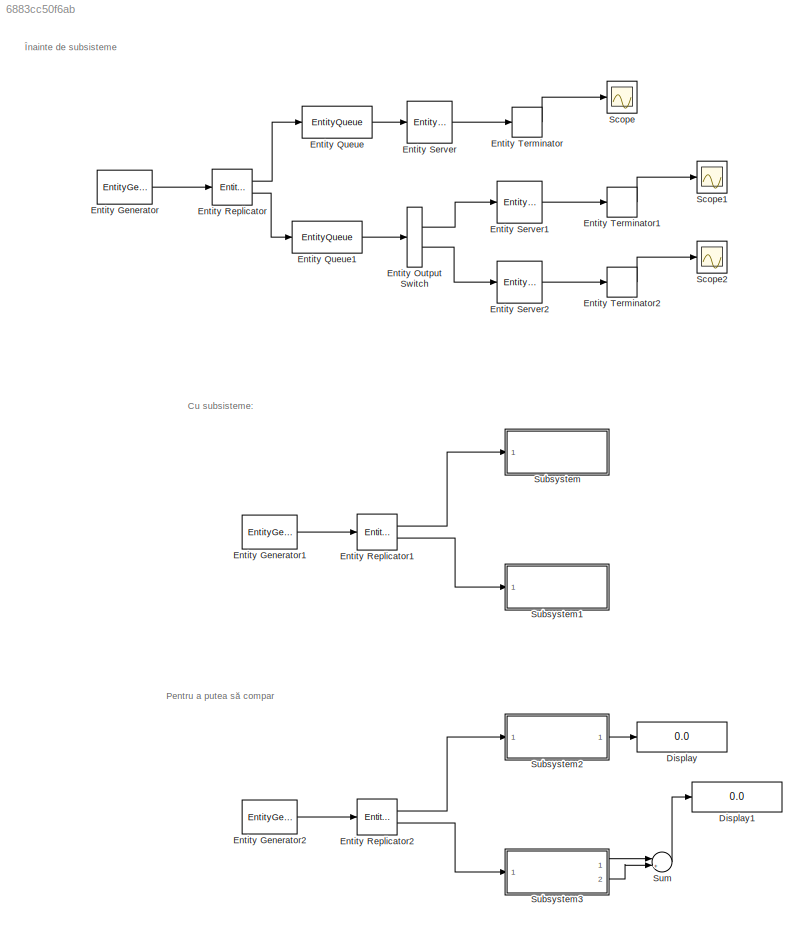
MODEL slx_6883cc50f6ab
KIND model
CONFIG AbsTol = auto
CONFIG FixedStep = auto
CONFIG MaxStep = auto
CONFIG MinStep = auto
CONFIG RelTol = 1e-3
CONFIG SampleTimeConstraint = Unconstrained
CONFIG Solver = VariableStepDiscrete
CONFIG SolverMode = Auto
CONFIG SolverName = VariableStepDiscrete
CONFIG StartTime = 0.0
CONFIG StopTime = 100
BLOCK [Display] Display
  Decimation = 1
  Ports = [1]
BLOCK [Display] Display1
  Decimation = 1
  Ports = [1]
BLOCK [EntityGenerator] Entity Generator
  AttributeInitialValue = exprnd(1)
  AttributeName = ServiceTime
  EntityType = Structured
  EntityTypeName = Entity
  IntergenerationTimeAction = dt = exprnd(0.5);
  OutputPortMap = o3
  OutputPortMessageModes = m
  Ports = [0, 1]
  TimeSource = MATLAB action
BLOCK [EntityGenerator] Entity Generator1
  AttributeInitialValue = exprnd(1)
  AttributeName = ServiceTime
  EntityType = Structured
  EntityTypeName = Entity
  IntergenerationTimeAction = dt = exprnd(0.5);
  OutputPortMap = o3
  OutputPortMessageModes = m
  Ports = [0, 1]
  TimeSource = MATLAB action
BLOCK [EntityGenerator] Entity Generator2
  AttributeInitialValue = exprnd(1)
  AttributeName = ServiceTime
  EntityType = Structured
  EntityTypeName = Entity
  IntergenerationTimeAction = dt = exprnd(0.5);
  OutputPortMap = o3
  OutputPortMessageModes = m
  Ports = [0, 1]
  TimeSource = MATLAB action
BLOCK [EntityOutputSwitch] Entity Output Switch
  InputPortMap = u1
  InputPortMessageModes = m
  OutputPortMap = o0,o1
  OutputPortMessageModes = m,m
  Ports = [1, 2]
  SwitchAttributeName = Attribute1
BLOCK [EntityQueue] Entity Queue
  InputPortMap = u0
  InputPortMessageModes = m
  OutputPortMap = o5
  OutputPortMessageModes = m
  Ports = [1, 1]
BLOCK [EntityQueue] Entity Queue1
  InputPortMap = u0
  InputPortMessageModes = m
  OutputPortMap = o5
  OutputPortMessageModes = m
  Ports = [1, 1]
BLOCK [EntityReplicator] Entity Replicator
  InputPortMap = u0
  InputPortMessageModes = m
  OutputPortMap = o0,o1
  OutputPortMessageModes = m,m
  Ports = [1, 2]
BLOCK [EntityReplicator] Entity Replicator1
  InputPortMap = u0
  InputPortMessageModes = m
  OutputPortMap = o0,o1
  OutputPortMessageModes = m,m
  Ports = [1, 2]
BLOCK [EntityReplicator] Entity Replicator2
  InputPortMap = u0
  InputPortMessageModes = m
  OutputPortMap = o0,o1
  OutputPortMessageModes = m,m
  Ports = [1, 2]
BLOCK [EntityServer] Entity Server
  Capacity = 2
  InputPortMap = u2
  InputPortMessageModes = m
  OutputPortMap = o9
  OutputPortMessageModes = m
  Ports = [1, 1]
  ServiceTimeSource = Attribute
BLOCK [EntityServer] Entity Server1
  Capacity = 1
  InputPortMap = u2
  InputPortMessageModes = m
  OutputPortMap = o9
  OutputPortMessageModes = m
  Ports = [1, 1]
  ServiceTimeSource = Attribute
BLOCK [EntityServer] Entity Server2
  Capacity = 1
  InputPortMap = u2
  InputPortMessageModes = m
  OutputPortMap = o9
  OutputPortMessageModes = m
  Ports = [1, 1]
  ServiceTimeSource = Attribute
BLOCK [EntityTerminator] Entity Terminator
  InputPortMap = u0
  InputPortMessageModes = m
  NumberEntitiesArrived = on
  OutputPortMap = o0
  Ports = [1, 1]
BLOCK [EntityTerminator] Entity Terminator1
  InputPortMap = u0
  InputPortMessageModes = m
  NumberEntitiesArrived = on
  OutputPortMap = o0
  Ports = [1, 1]
BLOCK [EntityTerminator] Entity Terminator2
  InputPortMap = u0
  InputPortMessageModes = m
  NumberEntitiesArrived = on
  OutputPortMap = o0
  Ports = [1, 1]
BLOCK [Scope] Scope
  Ports = [1]
  ScopeSpecificationString = C++SS(StrPVP('SaveName','ScopeData'))
BLOCK [Scope] Scope1
  Ports = [1]
  ScopeSpecificationString = C++SS(StrPVP('SaveName','ScopeData'),StrPVP('SaveName','ScopeData1'))
BLOCK [Scope] Scope2
  Ports = [1]
  ScopeSpecificationString = C++SS(StrPVP('SaveName','ScopeData'),StrPVP('SaveName','ScopeData1'),StrPVP('SaveName','ScopeData2'))
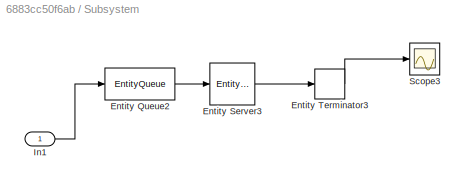
BLOCK [SubSystem] Subsystem
  Ports = [1]
  RequestExecContextInheritance = off
  Variant = off
BLOCK [EntityQueue] Subsystem/Entity Queue2
  InputPortMap = u0
  InputPortMessageModes = m
  OutputPortMap = o5
  OutputPortMessageModes = m
  Ports = [1, 1]
BLOCK [EntityServer] Subsystem/Entity Server3
  Capacity = 2
  InputPortMap = u2
  InputPortMessageModes = m
  OutputPortMap = o9
  OutputPortMessageModes = m
  Ports = [1, 1]
  ServiceTimeSource = Attribute
BLOCK [EntityTerminator] Subsystem/Entity Terminator3
  InputPortMap = u0
  InputPortMessageModes = m
  NumberEntitiesArrived = on
  OutputPortMap = o0
  Ports = [1, 1]
BLOCK [Inport] Subsystem/In1
  IconDisplay = Port number
BLOCK [Scope] Subsystem/Scope3
  Ports = [1]
  ScopeSpecificationString = C++SS(StrPVP('SaveName','ScopeData'),StrPVP('SaveName','ScopeData3'),StrPVP('SaveName','ScopeData3'))
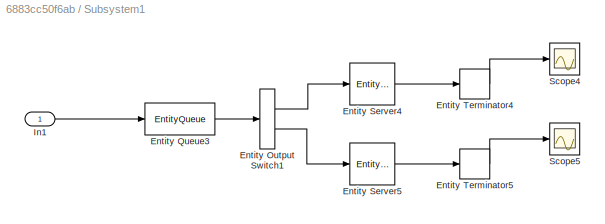
BLOCK [SubSystem] Subsystem1
  Ports = [1]
  RequestExecContextInheritance = off
  Variant = off
BLOCK [EntityOutputSwitch] Subsystem1/Entity Output Switch1
  InputPortMap = u1
  InputPortMessageModes = m
  OutputPortMap = o0,o1
  OutputPortMessageModes = m,m
  Ports = [1, 2]
  SwitchAttributeName = Attribute1
BLOCK [EntityQueue] Subsystem1/Entity Queue3
  InputPortMap = u0
  InputPortMessageModes = m
  OutputPortMap = o5
  OutputPortMessageModes = m
  Ports = [1, 1]
BLOCK [EntityServer] Subsystem1/Entity Server4
  Capacity = 1
  InputPortMap = u2
  InputPortMessageModes = m
  OutputPortMap = o9
  OutputPortMessageModes = m
  Ports = [1, 1]
  ServiceTimeSource = Attribute
BLOCK [EntityServer] Subsystem1/Entity Server5
  Capacity = 1
  InputPortMap = u2
  InputPortMessageModes = m
  OutputPortMap = o9
  OutputPortMessageModes = m
  Ports = [1, 1]
  ServiceTimeSource = Attribute
BLOCK [EntityTerminator] Subsystem1/Entity Terminator4
  InputPortMap = u0
  InputPortMessageModes = m
  NumberEntitiesArrived = on
  OutputPortMap = o0
  Ports = [1, 1]
BLOCK [EntityTerminator] Subsystem1/Entity Terminator5
  InputPortMap = u0
  InputPortMessageModes = m
  NumberEntitiesArrived = on
  OutputPortMap = o0
  Ports = [1, 1]
BLOCK [Inport] Subsystem1/In1
  IconDisplay = Port number
BLOCK [Scope] Subsystem1/Scope4
  Ports = [1]
  ScopeSpecificationString = C++SS(StrPVP('SaveName','ScopeData'),StrPVP('SaveName','ScopeData1'),StrPVP('SaveName','ScopeData4'),StrPVP('SaveName','ScopeData4'))
BLOCK [Scope] Subsystem1/Scope5
  Ports = [1]
  ScopeSpecificationString = C++SS(StrPVP('SaveName','ScopeData'),StrPVP('SaveName','ScopeData1'),StrPVP('SaveName','ScopeData2'),StrPVP('SaveName','ScopeData5'),StrPVP('SaveName','ScopeData5'))
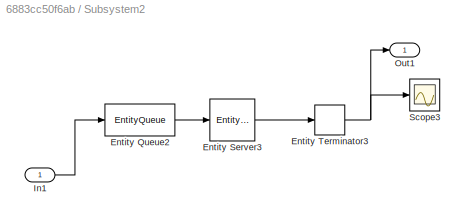
BLOCK [SubSystem] Subsystem2
  Ports = [1, 1]
  RequestExecContextInheritance = off
  Variant = off
BLOCK [EntityQueue] Subsystem2/Entity Queue2
  InputPortMap = u0
  InputPortMessageModes = m
  OutputPortMap = o5
  OutputPortMessageModes = m
  Ports = [1, 1]
BLOCK [EntityServer] Subsystem2/Entity Server3
  Capacity = 2
  InputPortMap = u2
  InputPortMessageModes = m
  OutputPortMap = o9
  OutputPortMessageModes = m
  Ports = [1, 1]
  ServiceTimeSource = Attribute
BLOCK [EntityTerminator] Subsystem2/Entity Terminator3
  InputPortMap = u0
  InputPortMessageModes = m
  NumberEntitiesArrived = on
  OutputPortMap = o0
  Ports = [1, 1]
BLOCK [Inport] Subsystem2/In1
  IconDisplay = Port number
BLOCK [Outport] Subsystem2/Out1
  IconDisplay = Port number
BLOCK [Scope] Subsystem2/Scope3
  Ports = [1]
  ScopeSpecificationString = C++SS(StrPVP('SaveName','ScopeData'),StrPVP('SaveName','ScopeData3'),StrPVP('SaveName','ScopeData3'))
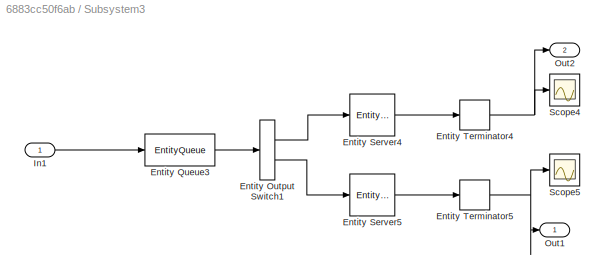
BLOCK [SubSystem] Subsystem3
  Ports = [1, 2]
  RequestExecContextInheritance = off
  Variant = off
BLOCK [EntityOutputSwitch] Subsystem3/Entity Output Switch1
  InputPortMap = u1
  InputPortMessageModes = m
  OutputPortMap = o0,o1
  OutputPortMessageModes = m,m
  Ports = [1, 2]
  SwitchAttributeName = Attribute1
BLOCK [EntityQueue] Subsystem3/Entity Queue3
  InputPortMap = u0
  InputPortMessageModes = m
  OutputPortMap = o5
  OutputPortMessageModes = m
  Ports = [1, 1]
BLOCK [EntityServer] Subsystem3/Entity Server4
  Capacity = 1
  InputPortMap = u2
  InputPortMessageModes = m
  OutputPortMap = o9
  OutputPortMessageModes = m
  Ports = [1, 1]
  ServiceTimeSource = Attribute
BLOCK [EntityServer] Subsystem3/Entity Server5
  Capacity = 1
  InputPortMap = u2
  InputPortMessageModes = m
  OutputPortMap = o9
  OutputPortMessageModes = m
  Ports = [1, 1]
  ServiceTimeSource = Attribute
BLOCK [EntityTerminator] Subsystem3/Entity Terminator4
  InputPortMap = u0
  InputPortMessageModes = m
  NumberEntitiesArrived = on
  OutputPortMap = o0
  Ports = [1, 1]
BLOCK [EntityTerminator] Subsystem3/Entity Terminator5
  InputPortMap = u0
  InputPortMessageModes = m
  NumberEntitiesArrived = on
  OutputPortMap = o0
  Ports = [1, 1]
BLOCK [Inport] Subsystem3/In1
  IconDisplay = Port number
BLOCK [Outport] Subsystem3/Out1
  IconDisplay = Port number
BLOCK [Outport] Subsystem3/Out2
  IconDisplay = Port number
  Port = 2
BLOCK [Scope] Subsystem3/Scope4
  Ports = [1]
  ScopeSpecificationString = C++SS(StrPVP('SaveName','ScopeData'),StrPVP('SaveName','ScopeData1'),StrPVP('SaveName','ScopeData4'),StrPVP('SaveName','ScopeData4'))
BLOCK [Scope] Subsystem3/Scope5
  Ports = [1]
  ScopeSpecificationString = C++SS(StrPVP('SaveName','ScopeData'),StrPVP('SaveName','ScopeData1'),StrPVP('SaveName','ScopeData2'),StrPVP('SaveName','ScopeData5'),StrPVP('SaveName','ScopeData5'))
BLOCK [Sum] Sum
  InputSameDT = off
  Inputs = |++
  OutDataTypeStr = Inherit: Inherit via internal rule
  Ports = [2, 1]
  SaturateOnIntegerOverflow = off
ANNOTATION (root): Cu subsisteme:
ANNOTATION (root): Pentru a putea să compar
ANNOTATION (root): Înainte de subsisteme
LINE Entity Generator1:1 -> Entity Replicator1:1
LINE Entity Generator2:1 -> Entity Replicator2:1
LINE Entity Generator:1 -> Entity Replicator:1
LINE Entity Output Switch:1 -> Entity Server1:1
LINE Entity Output Switch:2 -> Entity Server2:1
LINE Entity Queue1:1 -> Entity Output Switch:1
LINE Entity Queue:1 -> Entity Server:1
LINE Entity Replicator1:1 -> Subsystem:1
LINE Entity Replicator1:2 -> Subsystem1:1
LINE Entity Replicator2:1 -> Subsystem2:1
LINE Entity Replicator2:2 -> Subsystem3:1
LINE Entity Replicator:1 -> Entity Queue:1
LINE Entity Replicator:2 -> Entity Queue1:1
LINE Entity Server1:1 -> Entity Terminator1:1
LINE Entity Server2:1 -> Entity Terminator2:1
LINE Entity Server:1 -> Entity Terminator:1
LINE Entity Terminator1:1 -> Scope1:1
LINE Entity Terminator2:1 -> Scope2:1
LINE Entity Terminator:1 -> Scope:1
LINE Subsystem/Entity Queue2:1 -> Subsystem/Entity Server3:1
LINE Subsystem/Entity Server3:1 -> Subsystem/Entity Terminator3:1
LINE Subsystem/Entity Terminator3:1 -> Subsystem/Scope3:1
LINE Subsystem/In1:1 -> Subsystem/Entity Queue2:1
LINE Subsystem1/Entity Output Switch1:1 -> Subsystem1/Entity Server4:1
LINE Subsystem1/Entity Output Switch1:2 -> Subsystem1/Entity Server5:1
LINE Subsystem1/Entity Queue3:1 -> Subsystem1/Entity Output Switch1:1
LINE Subsystem1/Entity Server4:1 -> Subsystem1/Entity Terminator4:1
LINE Subsystem1/Entity Server5:1 -> Subsystem1/Entity Terminator5:1
LINE Subsystem1/Entity Terminator4:1 -> Subsystem1/Scope4:1
LINE Subsystem1/Entity Terminator5:1 -> Subsystem1/Scope5:1
LINE Subsystem1/In1:1 -> Subsystem1/Entity Queue3:1
LINE Subsystem2/Entity Queue2:1 -> Subsystem2/Entity Server3:1
LINE Subsystem2/Entity Server3:1 -> Subsystem2/Entity Terminator3:1
NET Subsystem2/Entity Terminator3:1 -> Subsystem2/Out1:1, Subsystem2/Scope3:1
LINE Subsystem2/In1:1 -> Subsystem2/Entity Queue2:1
LINE Subsystem2:1 -> Display:1
LINE Subsystem3/Entity Output Switch1:1 -> Subsystem3/Entity Server4:1
LINE Subsystem3/Entity Output Switch1:2 -> Subsystem3/Entity Server5:1
LINE Subsystem3/Entity Queue3:1 -> Subsystem3/Entity Output Switch1:1
LINE Subsystem3/Entity Server4:1 -> Subsystem3/Entity Terminator4:1
LINE Subsystem3/Entity Server5:1 -> Subsystem3/Entity Terminator5:1
NET Subsystem3/Entity Terminator4:1 -> Subsystem3/Out2:1, Subsystem3/Scope4:1
NET Subsystem3/Entity Terminator5:1 -> Subsystem3/Out1:1, Subsystem3/Scope5:1
LINE Subsystem3/In1:1 -> Subsystem3/Entity Queue3:1
LINE Subsystem3:1 -> Sum:1
LINE Subsystem3:2 -> Sum:2
LINE Sum:1 -> Display1:1
note: NET lines group one-source signal fan-out (src -> all destinations, sorted); 1:1 wires keep LINE
